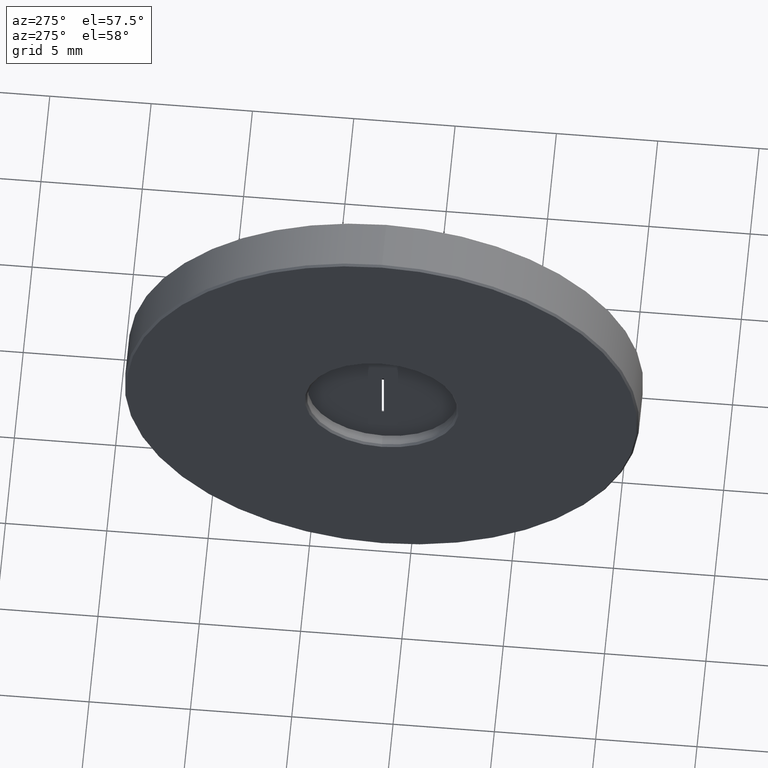
[diagram: clean part render]
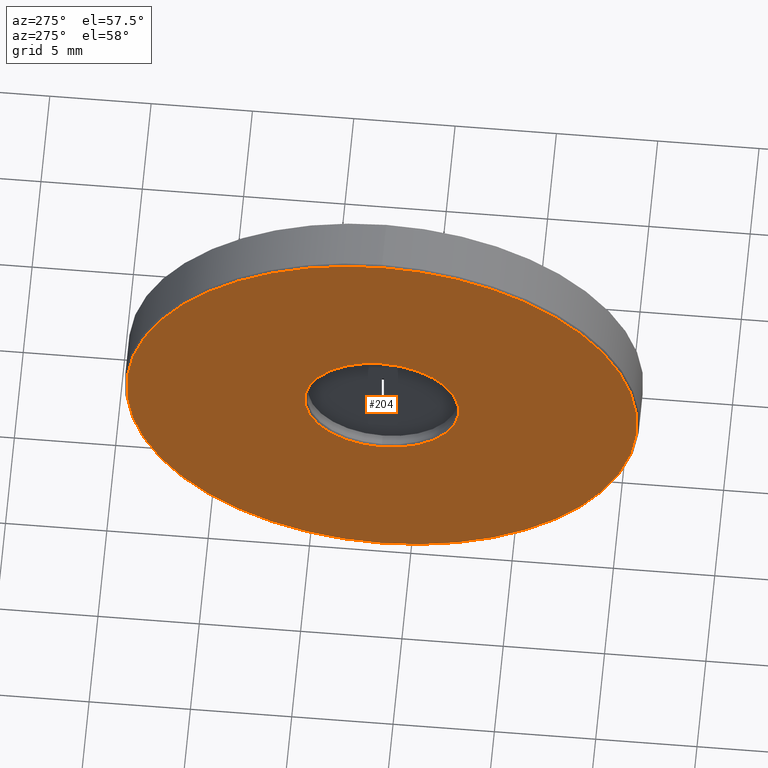
[diagram: same view with one face highlighted and labeled with its STEP entity id]
A machine part, auxiliary view. The second image highlights one B-rep face of the part: STEP entity #204.
In plain terms, the highlighted planar face has unit normal (1, 0, 0).
Its self-contained STEP definition (entity closure, byte-faithful):
#1 = VERTEX_POINT ( 'NONE', #20 ) ;
#20 = CARTESIAN_POINT ( 'NONE',  ( -4.934863851252999645, 1.436758841085001626, 38.00000000000000000 ) ) ;
#42 = DIRECTION ( 'NONE',  ( -1.000000000000000000, 0.000000000000000000, 0.000000000000000000 ) ) ;
#84 = EDGE_LOOP ( 'NONE', ( #594, #206 ) ) ;
#87 = AXIS2_PLACEMENT_3D ( 'NONE', #532, #385, #152 ) ;
#89 = FACE_OUTER_BOUND ( 'NONE', #84, .T. ) ;
#103 = AXIS2_PLACEMENT_3D ( 'NONE', #528, #823, #523 ) ;
#118 = EDGE_CURVE ( 'NONE', #520, #507, #162, .T. ) ;
#152 = DIRECTION ( 'NONE',  ( 0.000000000000000000, 1.000000000000000000, 0.000000000000000000 ) ) ;
#162 = CIRCLE ( 'NONE', #695, 3.800000000000001155 ) ;
#180 = CARTESIAN_POINT ( 'NONE',  ( -4.934863851252999645, 1.436758841085000071, 25.39999999999999858 ) ) ;
#191 = VERTEX_POINT ( 'NONE', #380 ) ;
#193 = CARTESIAN_POINT ( 'NONE',  ( -4.934863851252999645, 1.436758841085000071, 25.39999999999999858 ) ) ;
#204 = ADVANCED_FACE ( 'NONE', ( #89, #368 ), #670, .F. ) ;
#206 = ORIENTED_EDGE ( 'NONE', *, *, #269, .T. ) ;
#230 = AXIS2_PLACEMENT_3D ( 'NONE', #457, #364, #747 ) ;
#238 = EDGE_CURVE ( 'NONE', #507, #520, #710, .T. ) ;
#240 = CIRCLE ( 'NONE', #622, 12.59999999999999964 ) ;
#269 = EDGE_CURVE ( 'NONE', #1, #191, #607, .T. ) ;
#275 = CARTESIAN_POINT ( 'NONE',  ( -4.934863851252999645, 1.436758841085000515, 21.59999999999999787 ) ) ;
#318 = DIRECTION ( 'NONE',  ( 1.000000000000000000, 0.000000000000000000, 0.000000000000000000 ) ) ;
#329 = DIRECTION ( 'NONE',  ( 0.000000000000000000, 0.000000000000000000, -1.000000000000000000 ) ) ;
#340 = CARTESIAN_POINT ( 'NONE',  ( -4.934863851252999645, 1.436758841085000071, 29.19999999999999929 ) ) ;
#364 = DIRECTION ( 'NONE',  ( -1.000000000000000000, 0.000000000000000000, 0.000000000000000000 ) ) ;
#368 = FACE_BOUND ( 'NONE', #892, .T. ) ;
#380 = CARTESIAN_POINT ( 'NONE',  ( -4.934863851252999645, 1.436758841085000071, 12.79999999999999893 ) ) ;
#385 = DIRECTION ( 'NONE',  ( 1.000000000000000000, 0.000000000000000000, 0.000000000000000000 ) ) ;
#457 = CARTESIAN_POINT ( 'NONE',  ( -4.934863851252999645, 1.436758841085000071, 25.39999999999999858 ) ) ;
#477 = DIRECTION ( 'NONE',  ( 0.000000000000000000, 0.000000000000000000, -1.000000000000000000 ) ) ;
#507 = VERTEX_POINT ( 'NONE', #275 ) ;
#520 = VERTEX_POINT ( 'NONE', #340 ) ;
#523 = DIRECTION ( 'NONE',  ( 0.000000000000000000, 0.000000000000000000, -1.000000000000000000 ) ) ;
#528 = CARTESIAN_POINT ( 'NONE',  ( -4.934863851252999645, 1.436758841085000071, 25.39999999999999858 ) ) ;
#532 = CARTESIAN_POINT ( 'NONE',  ( -4.934863851252999645, 1.436758841085000071, 25.39999999999999858 ) ) ;
#585 = ORIENTED_EDGE ( 'NONE', *, *, #238, .T. ) ;
#594 = ORIENTED_EDGE ( 'NONE', *, *, #689, .T. ) ;
#603 = ORIENTED_EDGE ( 'NONE', *, *, #118, .T. ) ;
#607 = CIRCLE ( 'NONE', #230, 12.59999999999999964 ) ;
#622 = AXIS2_PLACEMENT_3D ( 'NONE', #193, #42, #329 ) ;
#670 = PLANE ( 'NONE',  #87 ) ;
#689 = EDGE_CURVE ( 'NONE', #191, #1, #240, .T. ) ;
#695 = AXIS2_PLACEMENT_3D ( 'NONE', #180, #318, #477 ) ;
#710 = CIRCLE ( 'NONE', #103, 3.800000000000001155 ) ;
#747 = DIRECTION ( 'NONE',  ( 0.000000000000000000, 0.000000000000000000, -1.000000000000000000 ) ) ;
#823 = DIRECTION ( 'NONE',  ( 1.000000000000000000, 0.000000000000000000, 0.000000000000000000 ) ) ;
#892 = EDGE_LOOP ( 'NONE', ( #603, #585 ) ) ;